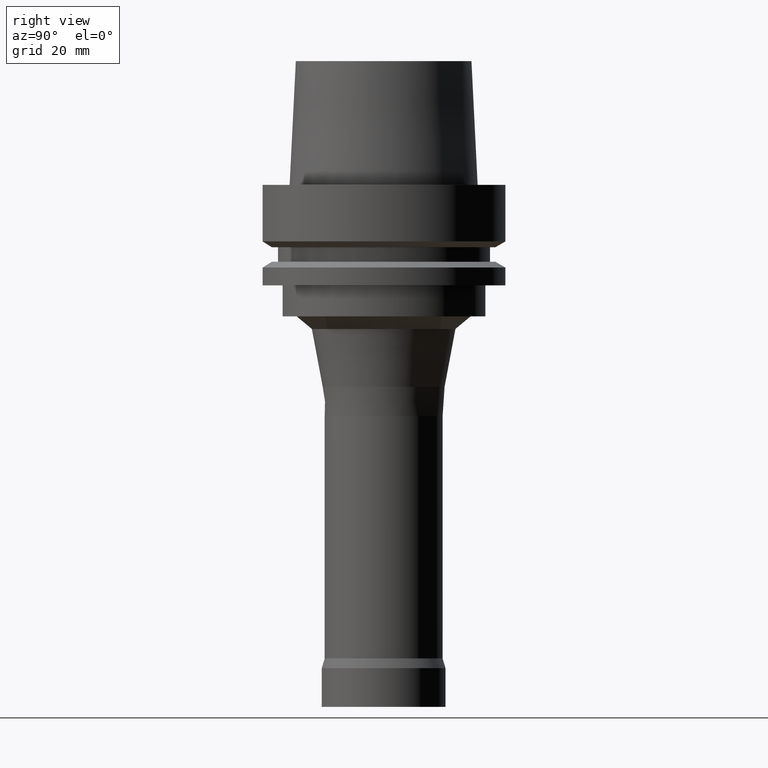
[diagram: clean part render]
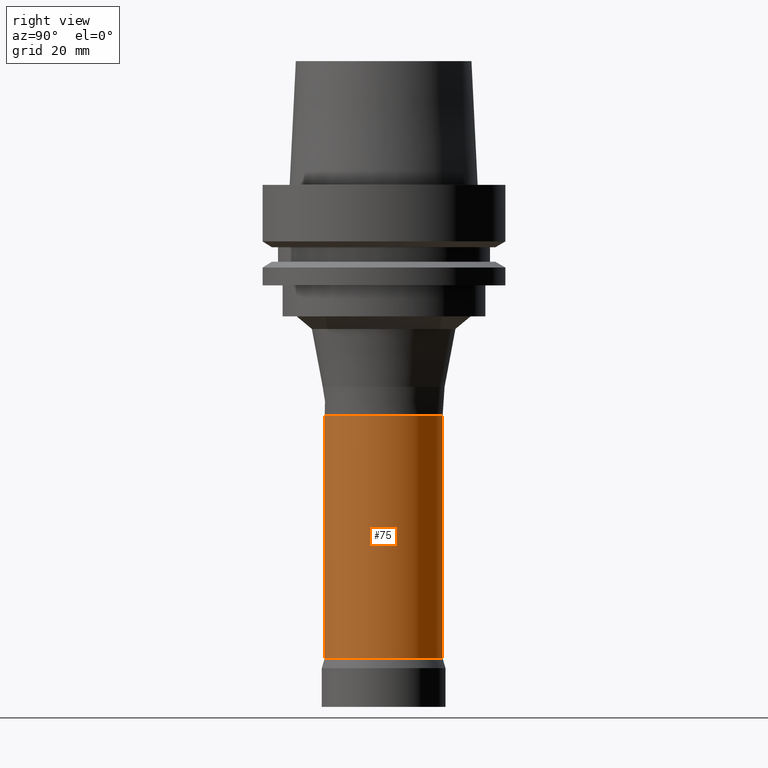
[diagram: same view with one face highlighted and labeled with its STEP entity id]
A machine part, right view. The second image highlights one B-rep face of the part: STEP entity #75.
In plain terms, the highlighted cylindrical surface (bore or boss wall) has radius 15.25 mm, axis along (-0, -0, 1).
Its self-contained STEP definition (entity closure, byte-faithful):
#75=ADVANCED_FACE('',(#96,#97),#98,.T.);
#96=FACE_BOUND('',#154,.T.);
#97=FACE_BOUND('',#155,.T.);
#98=CYLINDRICAL_SURFACE('',#156,15.25);
#154=EDGE_LOOP('',(#212));
#155=EDGE_LOOP('',(#213));
#156=AXIS2_PLACEMENT_3D('',#214,#215,#216);
#212=ORIENTED_EDGE('',*,*,#310,.F.);
#213=ORIENTED_EDGE('',*,*,#311,.T.);
#214=CARTESIAN_POINT('',(5.58001240857328E-015,1.11600248171466E-014,-91.1285182382104));
#215=DIRECTION('',(-6.12323399573677E-017,-1.22464679914735E-016,1.0));
#216=DIRECTION('',(-1.23259516440783E-032,1.0,1.22464679914735E-016));
#310=EDGE_CURVE('',#329,#329,#330,.T.);
#311=EDGE_CURVE('',#331,#331,#332,.T.);
#329=VERTEX_POINT('',#367);
#330=CIRCLE('',#368,15.25);
#331=VERTEX_POINT('',#369);
#332=CIRCLE('',#370,15.25);
#367=CARTESIAN_POINT('',(7.49894019868358E-015,15.25,-122.46698728));
#368=AXIS2_PLACEMENT_3D('',#405,#406,#407);
#369=CARTESIAN_POINT('',(3.66108461846297E-015,15.25,-59.7900491964207));
#370=AXIS2_PLACEMENT_3D('',#408,#409,#410);
#405=CARTESIAN_POINT('',(7.49894019868358E-015,1.49978803973672E-014,-122.46698728));
#406=DIRECTION('',(6.12323399573677E-017,1.22464679914735E-016,-1.0));
#407=DIRECTION('',(-1.23259516440783E-032,1.0,1.22464679914735E-016));
#408=CARTESIAN_POINT('',(3.66108461846297E-015,7.32216923692594E-015,-59.7900491964207));
#409=DIRECTION('',(6.12323399573677E-017,1.22464679914735E-016,-1.0));
#410=DIRECTION('',(-1.23259516440783E-032,1.0,1.22464679914735E-016));